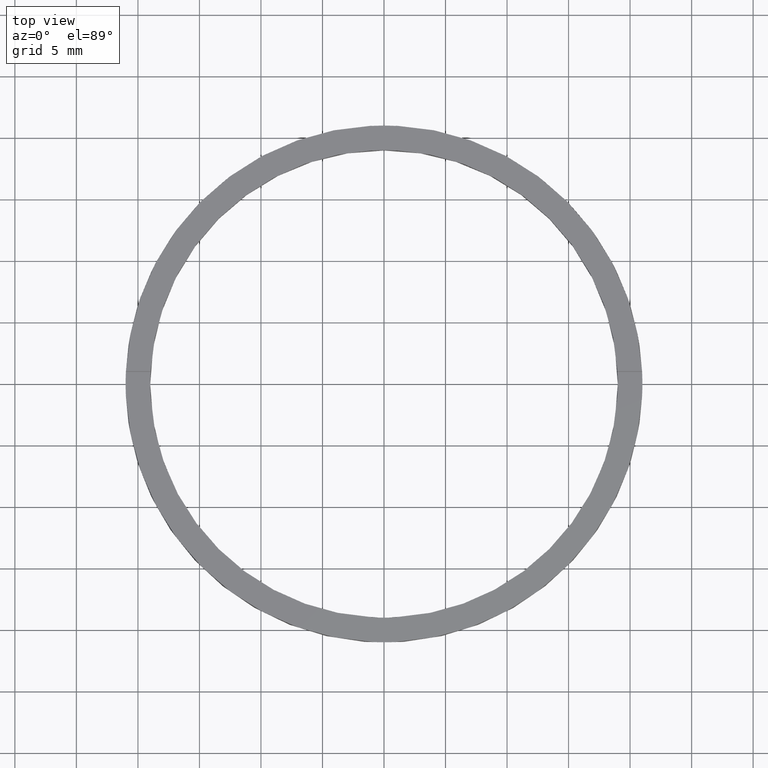
[diagram: clean part render]
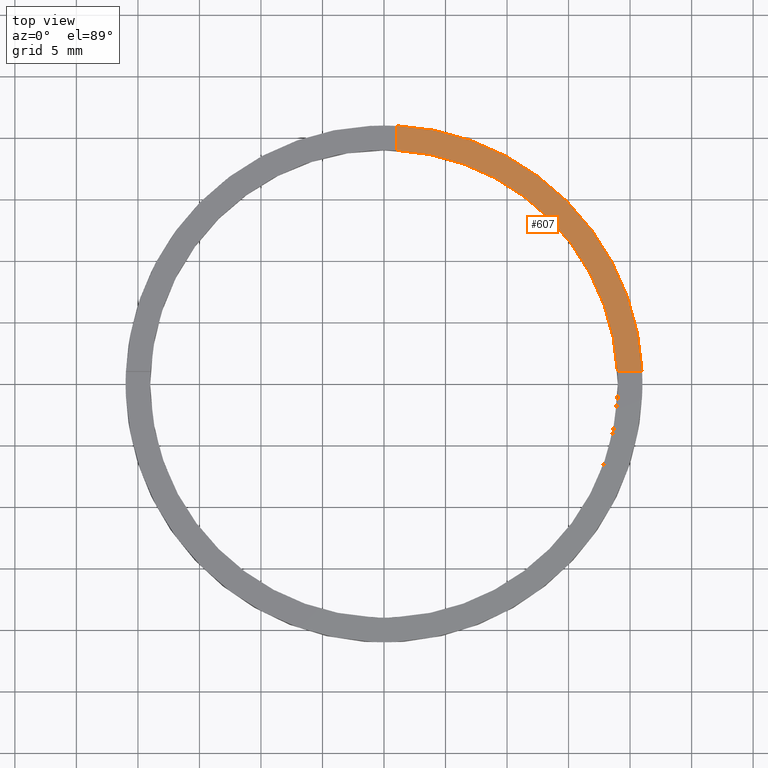
[diagram: same view with one face highlighted and labeled with its STEP entity id]
A machine part, top view. The second image highlights one B-rep face of the part: STEP entity #607.
In plain terms, the highlighted planar face has unit normal (0, 0, 1).
Its self-contained STEP definition (entity closure, byte-faithful):
#25 = ORIENTED_EDGE ( 'NONE', *, *, #89, .T. ) ;
#34 = DIRECTION ( 'NONE',  ( 0.000000000000000000, 0.000000000000000000, 1.000000000000000000 ) ) ;
#46 = DIRECTION ( 'NONE',  ( 0.000000000000000000, 0.000000000000000000, 1.000000000000000000 ) ) ;
#61 = VERTEX_POINT ( 'NONE', #219 ) ;
#68 = DIRECTION ( 'NONE',  ( 0.000000000000000000, 1.000000000000000000, 0.000000000000000000 ) ) ;
#70 = CARTESIAN_POINT ( 'NONE',  ( 0.9999999999999740208, 18.97366596101027270, 2.500000000000000000 ) ) ;
#89 = EDGE_CURVE ( 'NONE', #206, #61, #653, .T. ) ;
#95 = DIRECTION ( 'NONE',  ( -1.000000000000000000, -4.336808689942017120E-17, -0.000000000000000000 ) ) ;
#117 = EDGE_CURVE ( 'NONE', #222, #253, #356, .T. ) ;
#126 = AXIS2_PLACEMENT_3D ( 'NONE', #221, #338, #654 ) ;
#130 = LINE ( 'NONE', #743, #387 ) ;
#146 = FACE_OUTER_BOUND ( 'NONE', #503, .T. ) ;
#151 = PLANE ( 'NONE',  #505 ) ;
#156 = VECTOR ( 'NONE', #95, 1000.000000000000000 ) ;
#206 = VERTEX_POINT ( 'NONE', #731 ) ;
#219 = CARTESIAN_POINT ( 'NONE',  ( 0.9999999999999740208, 20.97617696340303084, 2.500000000000000000 ) ) ;
#221 = CARTESIAN_POINT ( 'NONE',  ( 0.000000000000000000, 0.000000000000000000, 2.500000000000000000 ) ) ;
#222 = VERTEX_POINT ( 'NONE', #423 ) ;
#253 = VERTEX_POINT ( 'NONE', #70 ) ;
#266 = EDGE_CURVE ( 'NONE', #253, #61, #130, .T. ) ;
#313 = ORIENTED_EDGE ( 'NONE', *, *, #117, .F. ) ;
#338 = DIRECTION ( 'NONE',  ( 0.000000000000000000, 0.000000000000000000, 1.000000000000000000 ) ) ;
#342 = CARTESIAN_POINT ( 'NONE',  ( 10.99999999999999645, 0.9999999999998412381, 2.500000000000000000 ) ) ;
#356 = CIRCLE ( 'NONE', #604, 19.00000000000000000 ) ;
#387 = VECTOR ( 'NONE', #68, 1000.000000000000000 ) ;
#397 = DIRECTION ( 'NONE',  ( 1.000000000000000000, 0.000000000000000000, 0.000000000000000000 ) ) ;
#398 = CARTESIAN_POINT ( 'NONE',  ( 0.000000000000000000, 0.000000000000000000, 2.500000000000000000 ) ) ;
#423 = CARTESIAN_POINT ( 'NONE',  ( 18.97366596101028335, 0.9999999999998416822, 2.500000000000000000 ) ) ;
#503 = EDGE_LOOP ( 'NONE', ( #506, #313, #722, #25 ) ) ;
#505 = AXIS2_PLACEMENT_3D ( 'NONE', #398, #46, #516 ) ;
#506 = ORIENTED_EDGE ( 'NONE', *, *, #266, .F. ) ;
#516 = DIRECTION ( 'NONE',  ( 1.000000000000000000, 0.000000000000000000, -0.000000000000000000 ) ) ;
#604 = AXIS2_PLACEMENT_3D ( 'NONE', #769, #34, #397 ) ;
#607 = ADVANCED_FACE ( 'NONE', ( #146 ), #151, .T. ) ;
#652 = EDGE_CURVE ( 'NONE', #206, #222, #686, .T. ) ;
#653 = CIRCLE ( 'NONE', #126, 21.00000000000000000 ) ;
#654 = DIRECTION ( 'NONE',  ( 1.000000000000000000, 0.000000000000000000, 0.000000000000000000 ) ) ;
#686 = LINE ( 'NONE', #342, #156 ) ;
#722 = ORIENTED_EDGE ( 'NONE', *, *, #652, .F. ) ;
#731 = CARTESIAN_POINT ( 'NONE',  ( 20.97617696340304150, 0.9999999999998416822, 2.500000000000000000 ) ) ;
#743 = CARTESIAN_POINT ( 'NONE',  ( 0.9999999999999744649, 11.00000000000000178, 2.500000000000000000 ) ) ;
#769 = CARTESIAN_POINT ( 'NONE',  ( 0.000000000000000000, 0.000000000000000000, 2.500000000000000000 ) ) ;